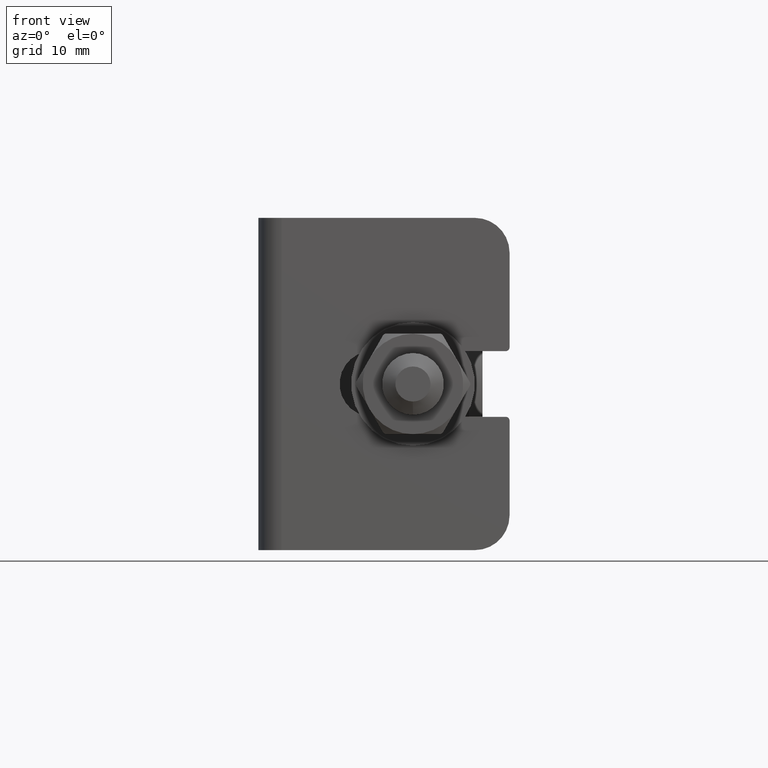
[diagram: clean part render]
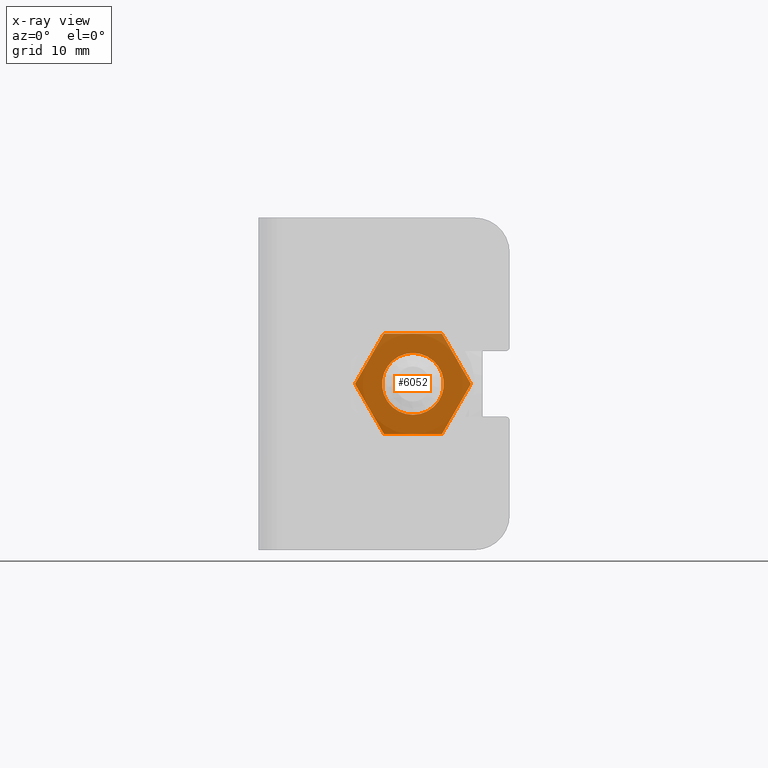
[diagram: x-ray — body ghosted, one internal face saturated and labeled with its STEP entity id]
A machine part, front view, then the same camera in x-ray: the body is ghosted and one INTERNAL B-rep face — a face not visible from any outside direction — is saturated and labeled: STEP entity #6052.
In plain terms, the highlighted planar face has unit normal (0, 1, 0).
Its self-contained STEP definition (entity closure, byte-faithful):
#66 = DIRECTION ( 'NONE',  ( 1.000000000000000000, 0.000000000000000000, 0.000000000000000000 ) ) ;
#1203 = VERTEX_POINT ( 'NONE', #5866 ) ;
#1902 = VECTOR ( 'NONE', #66, 1000.000000000000000 ) ;
#2111 = CARTESIAN_POINT ( 'NONE',  ( -3.752776749732567474, 0.000000000000000000, -6.499999999999998224 ) ) ;
#2539 = CARTESIAN_POINT ( 'NONE',  ( 0.000000000000000000, 0.000000000000000000, 0.000000000000000000 ) ) ;
#2627 = EDGE_CURVE ( 'NONE', #10088, #15184, #7865, .T. ) ;
#2795 = CARTESIAN_POINT ( 'NONE',  ( 0.000000000000000000, 0.000000000000000000, 0.000000000000000000 ) ) ;
#3145 = VECTOR ( 'NONE', #10709, 1000.000000000000114 ) ;
#3418 = DIRECTION ( 'NONE',  ( -0.4999999999999998890, 0.000000000000000000, 0.8660254037844387076 ) ) ;
#3510 = VECTOR ( 'NONE', #4299, 1000.000000000000114 ) ;
#3772 = DIRECTION ( 'NONE',  ( 0.000000000000000000, 1.000000000000000000, 0.000000000000000000 ) ) ;
#4111 = VERTEX_POINT ( 'NONE', #12853 ) ;
#4299 = DIRECTION ( 'NONE',  ( 0.4999999999999999445, 0.000000000000000000, 0.8660254037844385966 ) ) ;
#4326 = EDGE_CURVE ( 'NONE', #4923, #4923, #8229, .T. ) ;
#4337 = CARTESIAN_POINT ( 'NONE',  ( 3.752776749732567918, 0.000000000000000000, 6.499999999999999112 ) ) ;
#4577 = AXIS2_PLACEMENT_3D ( 'NONE', #2795, #9140, #7984 ) ;
#4686 = ORIENTED_EDGE ( 'NONE', *, *, #4326, .F. ) ;
#4694 = CARTESIAN_POINT ( 'NONE',  ( -7.505553499465132283, 0.000000000000000000, -8.441758817420903432E-16 ) ) ;
#4770 = DIRECTION ( 'NONE',  ( -0.5000000000000003331, 0.000000000000000000, -0.8660254037844383745 ) ) ;
#4870 = VECTOR ( 'NONE', #4770, 1000.000000000000114 ) ;
#4923 = VERTEX_POINT ( 'NONE', #16328 ) ;
#5093 = CARTESIAN_POINT ( 'NONE',  ( 3.752776749732567918, 0.000000000000000000, 6.499999999999999112 ) ) ;
#5366 = FACE_BOUND ( 'NONE', #6128, .T. ) ;
#5513 = VERTEX_POINT ( 'NONE', #13820 ) ;
#5607 = AXIS2_PLACEMENT_3D ( 'NONE', #2539, #3772, #14074 ) ;
#5820 = EDGE_CURVE ( 'NONE', #1203, #5513, #6758, .T. ) ;
#5866 = CARTESIAN_POINT ( 'NONE',  ( 3.752776749732565253, 0.000000000000000000, -6.499999999999999112 ) ) ;
#6052 = ADVANCED_FACE ( 'NONE', ( #5366, #15394 ), #10364, .F. ) ;
#6128 = EDGE_LOOP ( 'NONE', ( #4686 ) ) ;
#6758 = LINE ( 'NONE', #14928, #6781 ) ;
#6781 = VECTOR ( 'NONE', #6907, 1000.000000000000000 ) ;
#6907 = DIRECTION ( 'NONE',  ( -1.000000000000000000, 0.000000000000000000, 1.155626614413199824E-16 ) ) ;
#7865 = LINE ( 'NONE', #11874, #1902 ) ;
#7984 = DIRECTION ( 'NONE',  ( 0.000000000000000000, 0.000000000000000000, 1.000000000000000000 ) ) ;
#8229 = CIRCLE ( 'NONE', #4577, 4.000000000000000000 ) ;
#8384 = ORIENTED_EDGE ( 'NONE', *, *, #2627, .F. ) ;
#8824 = EDGE_CURVE ( 'NONE', #5513, #15022, #11032, .T. ) ;
#8887 = ORIENTED_EDGE ( 'NONE', *, *, #9604, .F. ) ;
#9140 = DIRECTION ( 'NONE',  ( -0.000000000000000000, -1.000000000000000000, -0.000000000000000000 ) ) ;
#9215 = VECTOR ( 'NONE', #3418, 1000.000000000000000 ) ;
#9261 = LINE ( 'NONE', #12161, #3510 ) ;
#9604 = EDGE_CURVE ( 'NONE', #4111, #1203, #12253, .T. ) ;
#10088 = VERTEX_POINT ( 'NONE', #11342 ) ;
#10364 = PLANE ( 'NONE',  #5607 ) ;
#10599 = ORIENTED_EDGE ( 'NONE', *, *, #5820, .F. ) ;
#10691 = EDGE_LOOP ( 'NONE', ( #10834, #14574, #10599, #8887, #15770, #8384 ) ) ;
#10709 = DIRECTION ( 'NONE',  ( 0.4999999999999998335, 0.000000000000000000, -0.8660254037844387076 ) ) ;
#10834 = ORIENTED_EDGE ( 'NONE', *, *, #15968, .F. ) ;
#11032 = LINE ( 'NONE', #2111, #9215 ) ;
#11342 = CARTESIAN_POINT ( 'NONE',  ( -3.752776749732565253, 0.000000000000000000, 6.499999999999999112 ) ) ;
#11874 = CARTESIAN_POINT ( 'NONE',  ( -3.752776749732565253, 0.000000000000000000, 6.499999999999999112 ) ) ;
#12161 = CARTESIAN_POINT ( 'NONE',  ( -7.505553499465132283, 0.000000000000000000, -8.441758817420903432E-16 ) ) ;
#12253 = LINE ( 'NONE', #13874, #4870 ) ;
#12573 = LINE ( 'NONE', #4337, #3145 ) ;
#12853 = CARTESIAN_POINT ( 'NONE',  ( 7.505553499465134060, 0.000000000000000000, -1.651891225327391163E-15 ) ) ;
#13820 = CARTESIAN_POINT ( 'NONE',  ( -3.752776749732567474, 0.000000000000000000, -6.499999999999998224 ) ) ;
#13874 = CARTESIAN_POINT ( 'NONE',  ( 7.505553499465134060, 0.000000000000000000, -1.651891225327391163E-15 ) ) ;
#13888 = EDGE_CURVE ( 'NONE', #15184, #4111, #12573, .T. ) ;
#14074 = DIRECTION ( 'NONE',  ( 0.000000000000000000, -0.000000000000000000, 1.000000000000000000 ) ) ;
#14574 = ORIENTED_EDGE ( 'NONE', *, *, #8824, .F. ) ;
#14928 = CARTESIAN_POINT ( 'NONE',  ( 3.752776749732565253, 0.000000000000000000, -6.499999999999999112 ) ) ;
#15022 = VERTEX_POINT ( 'NONE', #4694 ) ;
#15184 = VERTEX_POINT ( 'NONE', #5093 ) ;
#15394 = FACE_OUTER_BOUND ( 'NONE', #10691, .T. ) ;
#15770 = ORIENTED_EDGE ( 'NONE', *, *, #13888, .F. ) ;
#15968 = EDGE_CURVE ( 'NONE', #15022, #10088, #9261, .T. ) ;
#16328 = CARTESIAN_POINT ( 'NONE',  ( 0.000000000000000000, 0.000000000000000000, 4.000000000000000000 ) ) ;